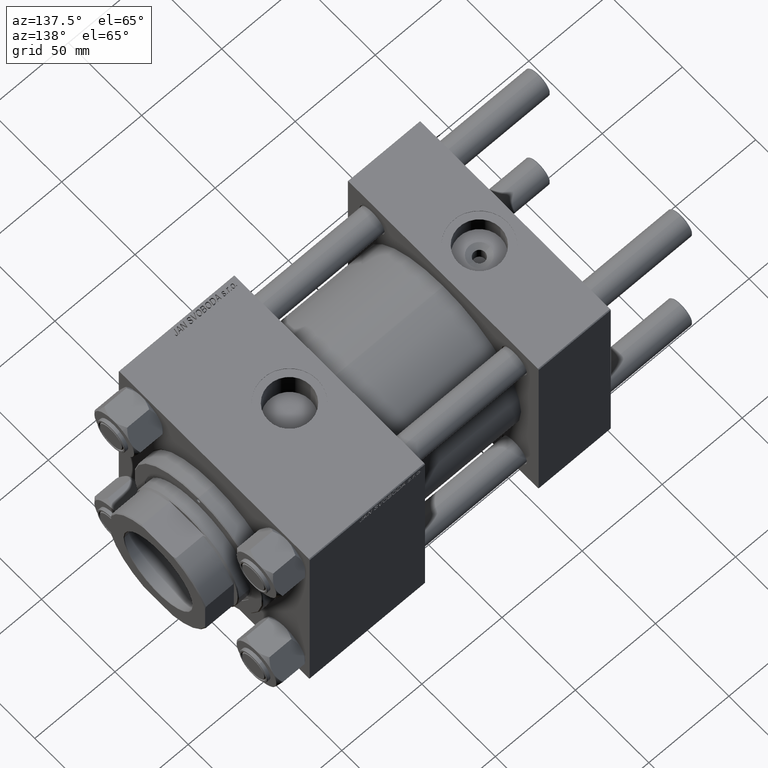
[diagram: clean part render]
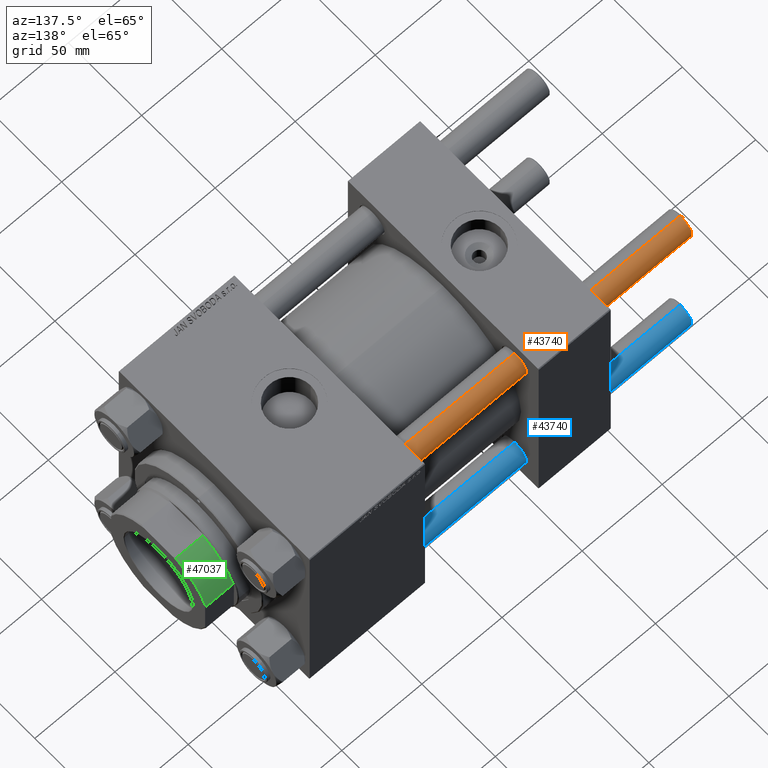
[diagram: same view with three faces highlighted in distinct colors, each labeled with its STEP entity id]
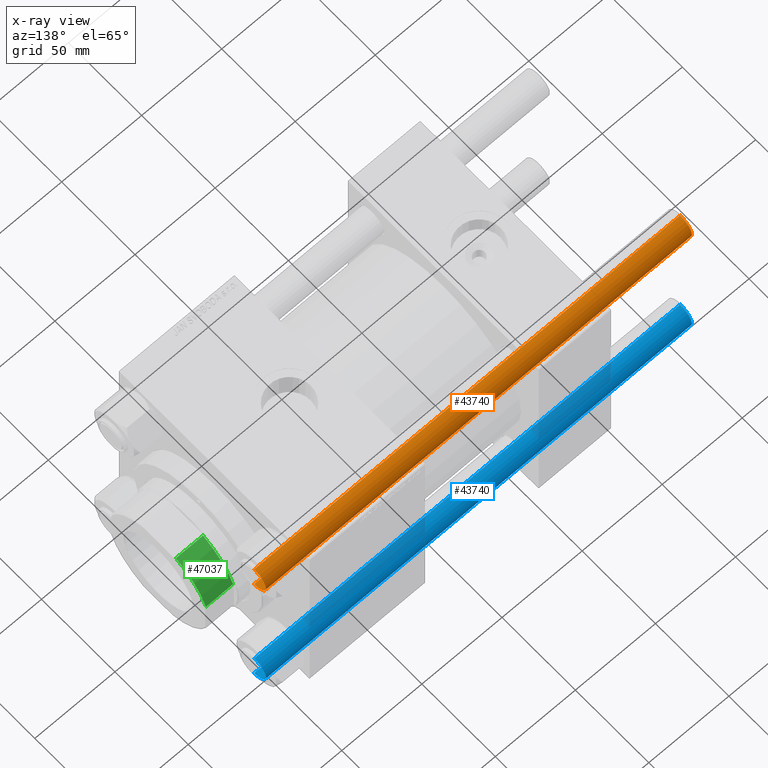
[diagram: x-ray of the same camera — body ghosted, the three highlighted faces saturated]
A machine part, auxiliary view with three faces highlighted in distinct colors.
The next image is the same camera in x-ray (body ghosted, the three faces saturated) — at least one of them is partly hidden behind the body in this view.
Their STEP definitions:

[orange] entity #43740 — the highlighted cylindrical surface (edge-blend (fillet) strip) has radius 8 mm, axis along (-1, -0, -0).
#81 = DIRECTION ( 'NONE',  ( 1.000000000000000000, 0.000000000000000000, 0.000000000000000000 ) ) ;
#124 = DIRECTION ( 'NONE',  ( -0.000000000000000000, -0.000000000000000000, -1.000000000000000000 ) ) ;
#353 = FACE_OUTER_BOUND ( 'NONE', #41272, .T. ) ;
#1243 = AXIS2_PLACEMENT_3D ( 'NONE', #27653, #8260, #21521 ) ;
#1315 = AXIS2_PLACEMENT_3D ( 'NONE', #29334, #22702, #46901 ) ;
#2346 = ORIENTED_EDGE ( 'NONE', *, *, #36550, .T. ) ;
#3352 = VECTOR ( 'NONE', #124, 1000.000000000000000 ) ;
#3731 = VERTEX_POINT ( 'NONE', #25433 ) ;
#8260 = DIRECTION ( 'NONE',  ( -0.000000000000000000, -0.000000000000000000, -1.000000000000000000 ) ) ;
#9122 = VECTOR ( 'NONE', #35744, 1000.000000000000000 ) ;
#10454 = VERTEX_POINT ( 'NONE', #13652 ) ;
#12097 = CYLINDRICAL_SURFACE ( 'NONE', #1243, 8.000000000000000000 ) ;
#13652 = CARTESIAN_POINT ( 'NONE',  ( -8.000000000000000000, 0.000000000000000000, 0.5000000000000559552 ) ) ;
#14927 = VERTEX_POINT ( 'NONE', #16907 ) ;
#16907 = CARTESIAN_POINT ( 'NONE',  ( 8.000000000000000000, 9.797174393178825657E-16, 0.5000000000000559552 ) ) ;
#19001 = DIRECTION ( 'NONE',  ( 0.000000000000000000, 0.000000000000000000, -1.000000000000000000 ) ) ;
#19285 = CARTESIAN_POINT ( 'NONE',  ( -8.000000000000000000, 0.000000000000000000, 267.0000000000000000 ) ) ;
#20906 = CIRCLE ( 'NONE', #1315, 8.000000000000000000 ) ;
#21521 = DIRECTION ( 'NONE',  ( -1.000000000000000000, 0.000000000000000000, 0.000000000000000000 ) ) ;
#21963 = EDGE_CURVE ( 'NONE', #42575, #10454, #34593, .T. ) ;
#22702 = DIRECTION ( 'NONE',  ( -0.000000000000000000, -0.000000000000000000, 1.000000000000000000 ) ) ;
#25433 = CARTESIAN_POINT ( 'NONE',  ( 8.000000000000000000, 9.797174393178825657E-16, 266.5000000000000568 ) ) ;
#27653 = CARTESIAN_POINT ( 'NONE',  ( 0.000000000000000000, 0.000000000000000000, 267.0000000000000000 ) ) ;
#27890 = CARTESIAN_POINT ( 'NONE',  ( 0.000000000000000000, 0.000000000000000000, 266.5000000000000568 ) ) ;
#28857 = EDGE_CURVE ( 'NONE', #3731, #14927, #43388, .T. ) ;
#29334 = CARTESIAN_POINT ( 'NONE',  ( 0.000000000000000000, 0.000000000000000000, 0.5000000000000559552 ) ) ;
#32881 = CIRCLE ( 'NONE', #34523, 8.000000000000000000 ) ;
#34523 = AXIS2_PLACEMENT_3D ( 'NONE', #27890, #19001, #81 ) ;
#34593 = LINE ( 'NONE', #19285, #3352 ) ;
#34983 = CARTESIAN_POINT ( 'NONE',  ( 8.000000000000000000, 9.797174393178825657E-16, 267.0000000000000000 ) ) ;
#35744 = DIRECTION ( 'NONE',  ( -0.000000000000000000, -0.000000000000000000, -1.000000000000000000 ) ) ;
#36550 = EDGE_CURVE ( 'NONE', #42575, #3731, #32881, .T. ) ;
#39315 = CARTESIAN_POINT ( 'NONE',  ( -8.000000000000000000, 0.000000000000000000, 266.5000000000000568 ) ) ;
#41272 = EDGE_LOOP ( 'NONE', ( #2346, #43040, #49362, #47762 ) ) ;
#42575 = VERTEX_POINT ( 'NONE', #39315 ) ;
#42980 = EDGE_CURVE ( 'NONE', #14927, #10454, #20906, .T. ) ;
#43040 = ORIENTED_EDGE ( 'NONE', *, *, #28857, .T. ) ;
#43388 = LINE ( 'NONE', #34983, #9122 ) ;
#43740 = ADVANCED_FACE ( 'NONE', ( #353 ), #12097, .T. ) ;
#46901 = DIRECTION ( 'NONE',  ( 1.000000000000000000, 0.000000000000000000, 0.000000000000000000 ) ) ;
#47762 = ORIENTED_EDGE ( 'NONE', *, *, #21963, .F. ) ;
#49362 = ORIENTED_EDGE ( 'NONE', *, *, #42980, .T. ) ;

[blue] entity #43740 — the highlighted cylindrical surface (edge-blend (fillet) strip) has radius 8 mm, axis along (1, 0, -0).
#81 = DIRECTION ( 'NONE',  ( 1.000000000000000000, 0.000000000000000000, 0.000000000000000000 ) ) ;
#124 = DIRECTION ( 'NONE',  ( -0.000000000000000000, -0.000000000000000000, -1.000000000000000000 ) ) ;
#353 = FACE_OUTER_BOUND ( 'NONE', #41272, .T. ) ;
#1243 = AXIS2_PLACEMENT_3D ( 'NONE', #27653, #8260, #21521 ) ;
#1315 = AXIS2_PLACEMENT_3D ( 'NONE', #29334, #22702, #46901 ) ;
#2346 = ORIENTED_EDGE ( 'NONE', *, *, #36550, .T. ) ;
#3352 = VECTOR ( 'NONE', #124, 1000.000000000000000 ) ;
#3731 = VERTEX_POINT ( 'NONE', #25433 ) ;
#8260 = DIRECTION ( 'NONE',  ( -0.000000000000000000, -0.000000000000000000, -1.000000000000000000 ) ) ;
#9122 = VECTOR ( 'NONE', #35744, 1000.000000000000000 ) ;
#10454 = VERTEX_POINT ( 'NONE', #13652 ) ;
#12097 = CYLINDRICAL_SURFACE ( 'NONE', #1243, 8.000000000000000000 ) ;
#13652 = CARTESIAN_POINT ( 'NONE',  ( -8.000000000000000000, 0.000000000000000000, 0.5000000000000559552 ) ) ;
#14927 = VERTEX_POINT ( 'NONE', #16907 ) ;
#16907 = CARTESIAN_POINT ( 'NONE',  ( 8.000000000000000000, 9.797174393178825657E-16, 0.5000000000000559552 ) ) ;
#19001 = DIRECTION ( 'NONE',  ( 0.000000000000000000, 0.000000000000000000, -1.000000000000000000 ) ) ;
#19285 = CARTESIAN_POINT ( 'NONE',  ( -8.000000000000000000, 0.000000000000000000, 267.0000000000000000 ) ) ;
#20906 = CIRCLE ( 'NONE', #1315, 8.000000000000000000 ) ;
#21521 = DIRECTION ( 'NONE',  ( -1.000000000000000000, 0.000000000000000000, 0.000000000000000000 ) ) ;
#21963 = EDGE_CURVE ( 'NONE', #42575, #10454, #34593, .T. ) ;
#22702 = DIRECTION ( 'NONE',  ( -0.000000000000000000, -0.000000000000000000, 1.000000000000000000 ) ) ;
#25433 = CARTESIAN_POINT ( 'NONE',  ( 8.000000000000000000, 9.797174393178825657E-16, 266.5000000000000568 ) ) ;
#27653 = CARTESIAN_POINT ( 'NONE',  ( 0.000000000000000000, 0.000000000000000000, 267.0000000000000000 ) ) ;
#27890 = CARTESIAN_POINT ( 'NONE',  ( 0.000000000000000000, 0.000000000000000000, 266.5000000000000568 ) ) ;
#28857 = EDGE_CURVE ( 'NONE', #3731, #14927, #43388, .T. ) ;
#29334 = CARTESIAN_POINT ( 'NONE',  ( 0.000000000000000000, 0.000000000000000000, 0.5000000000000559552 ) ) ;
#32881 = CIRCLE ( 'NONE', #34523, 8.000000000000000000 ) ;
#34523 = AXIS2_PLACEMENT_3D ( 'NONE', #27890, #19001, #81 ) ;
#34593 = LINE ( 'NONE', #19285, #3352 ) ;
#34983 = CARTESIAN_POINT ( 'NONE',  ( 8.000000000000000000, 9.797174393178825657E-16, 267.0000000000000000 ) ) ;
#35744 = DIRECTION ( 'NONE',  ( -0.000000000000000000, -0.000000000000000000, -1.000000000000000000 ) ) ;
#36550 = EDGE_CURVE ( 'NONE', #42575, #3731, #32881, .T. ) ;
#39315 = CARTESIAN_POINT ( 'NONE',  ( -8.000000000000000000, 0.000000000000000000, 266.5000000000000568 ) ) ;
#41272 = EDGE_LOOP ( 'NONE', ( #2346, #43040, #49362, #47762 ) ) ;
#42575 = VERTEX_POINT ( 'NONE', #39315 ) ;
#42980 = EDGE_CURVE ( 'NONE', #14927, #10454, #20906, .T. ) ;
#43040 = ORIENTED_EDGE ( 'NONE', *, *, #28857, .T. ) ;
#43388 = LINE ( 'NONE', #34983, #9122 ) ;
#43740 = ADVANCED_FACE ( 'NONE', ( #353 ), #12097, .T. ) ;
#46901 = DIRECTION ( 'NONE',  ( 1.000000000000000000, 0.000000000000000000, 0.000000000000000000 ) ) ;
#47762 = ORIENTED_EDGE ( 'NONE', *, *, #21963, .F. ) ;
#49362 = ORIENTED_EDGE ( 'NONE', *, *, #42980, .T. ) ;

[green] entity #47037 — the highlighted cylindrical surface (partial cylindrical patch) has radius 34 mm, axis along (1, 0, -0).
#2152 = CYLINDRICAL_SURFACE ( 'NONE', #35583, 34.00000000000000000 ) ;
#5826 = EDGE_CURVE ( 'NONE', #49671, #8360, #11247, .T. ) ;
#6239 = FACE_OUTER_BOUND ( 'NONE', #14138, .T. ) ;
#7023 = CARTESIAN_POINT ( 'NONE',  ( -11.48912529307606256, -32.00000000000000000, 160.5000000000000000 ) ) ;
#8360 = VERTEX_POINT ( 'NONE', #31993 ) ;
#9313 = DIRECTION ( 'NONE',  ( 1.000000000000000000, 0.000000000000000000, 0.000000000000000000 ) ) ;
#9602 = AXIS2_PLACEMENT_3D ( 'NONE', #21907, #30547, #37962 ) ;
#11234 = CARTESIAN_POINT ( 'NONE',  ( -31.99999999999999289, -11.48912529307609454, -0.001000000000001000089 ) ) ;
#11247 = CIRCLE ( 'NONE', #9602, 34.00000000000000000 ) ;
#11585 = CARTESIAN_POINT ( 'NONE',  ( -31.99999999999999289, -11.48912529307609454, 160.5000000000000000 ) ) ;
#13395 = CARTESIAN_POINT ( 'NONE',  ( 0.000000000000000000, 0.000000000000000000, -0.001000000000001000089 ) ) ;
#13564 = EDGE_CURVE ( 'NONE', #49993, #27253, #17076, .T. ) ;
#13712 = CARTESIAN_POINT ( 'NONE',  ( -11.48912529307606256, -32.00000000000000000, 177.5000000000000568 ) ) ;
#14138 = EDGE_LOOP ( 'NONE', ( #38653, #14610, #32378, #18777 ) ) ;
#14610 = ORIENTED_EDGE ( 'NONE', *, *, #5826, .T. ) ;
#16028 = DIRECTION ( 'NONE',  ( -0.000000000000000000, -0.000000000000000000, 1.000000000000000000 ) ) ;
#17076 = CIRCLE ( 'NONE', #23607, 34.00000000000000000 ) ;
#18777 = ORIENTED_EDGE ( 'NONE', *, *, #13564, .T. ) ;
#21907 = CARTESIAN_POINT ( 'NONE',  ( 0.000000000000000000, 0.000000000000000000, 177.5000000000000568 ) ) ;
#23607 = AXIS2_PLACEMENT_3D ( 'NONE', #44309, #32084, #24183 ) ;
#24183 = DIRECTION ( 'NONE',  ( -1.000000000000000000, 0.000000000000000000, 0.000000000000000000 ) ) ;
#25836 = EDGE_CURVE ( 'NONE', #49993, #8360, #34966, .T. ) ;
#27154 = EDGE_CURVE ( 'NONE', #27253, #49671, #32578, .T. ) ;
#27253 = VERTEX_POINT ( 'NONE', #7023 ) ;
#30547 = DIRECTION ( 'NONE',  ( -0.000000000000000000, -0.000000000000000000, -1.000000000000000000 ) ) ;
#31993 = CARTESIAN_POINT ( 'NONE',  ( -31.99999999999999289, -11.48912529307609454, 177.5000000000000568 ) ) ;
#32084 = DIRECTION ( 'NONE',  ( -0.000000000000000000, -0.000000000000000000, 1.000000000000000000 ) ) ;
#32378 = ORIENTED_EDGE ( 'NONE', *, *, #25836, .F. ) ;
#32578 = LINE ( 'NONE', #43808, #40148 ) ;
#34966 = LINE ( 'NONE', #11234, #38522 ) ;
#35583 = AXIS2_PLACEMENT_3D ( 'NONE', #13395, #37387, #9313 ) ;
#37387 = DIRECTION ( 'NONE',  ( -0.000000000000000000, -0.000000000000000000, 1.000000000000000000 ) ) ;
#37962 = DIRECTION ( 'NONE',  ( 1.000000000000000000, 0.000000000000000000, 0.000000000000000000 ) ) ;
#38522 = VECTOR ( 'NONE', #49996, 1000.000000000000000 ) ;
#38653 = ORIENTED_EDGE ( 'NONE', *, *, #27154, .T. ) ;
#40148 = VECTOR ( 'NONE', #16028, 1000.000000000000000 ) ;
#43808 = CARTESIAN_POINT ( 'NONE',  ( -11.48912529307606256, -32.00000000000000000, -0.001000000000001000089 ) ) ;
#44309 = CARTESIAN_POINT ( 'NONE',  ( 0.000000000000000000, 0.000000000000000000, 160.5000000000000000 ) ) ;
#47037 = ADVANCED_FACE ( 'NONE', ( #6239 ), #2152, .T. ) ;
#49671 = VERTEX_POINT ( 'NONE', #13712 ) ;
#49993 = VERTEX_POINT ( 'NONE', #11585 ) ;
#49996 = DIRECTION ( 'NONE',  ( -0.000000000000000000, -0.000000000000000000, 1.000000000000000000 ) ) ;